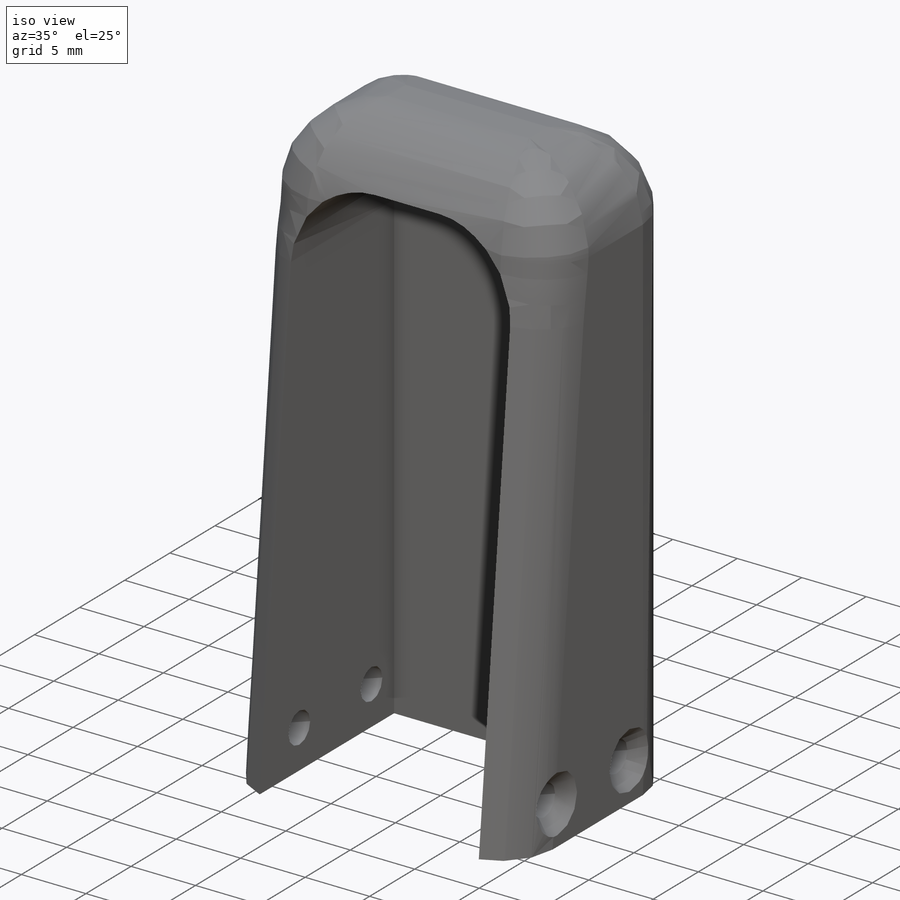
[diagram: iso view]
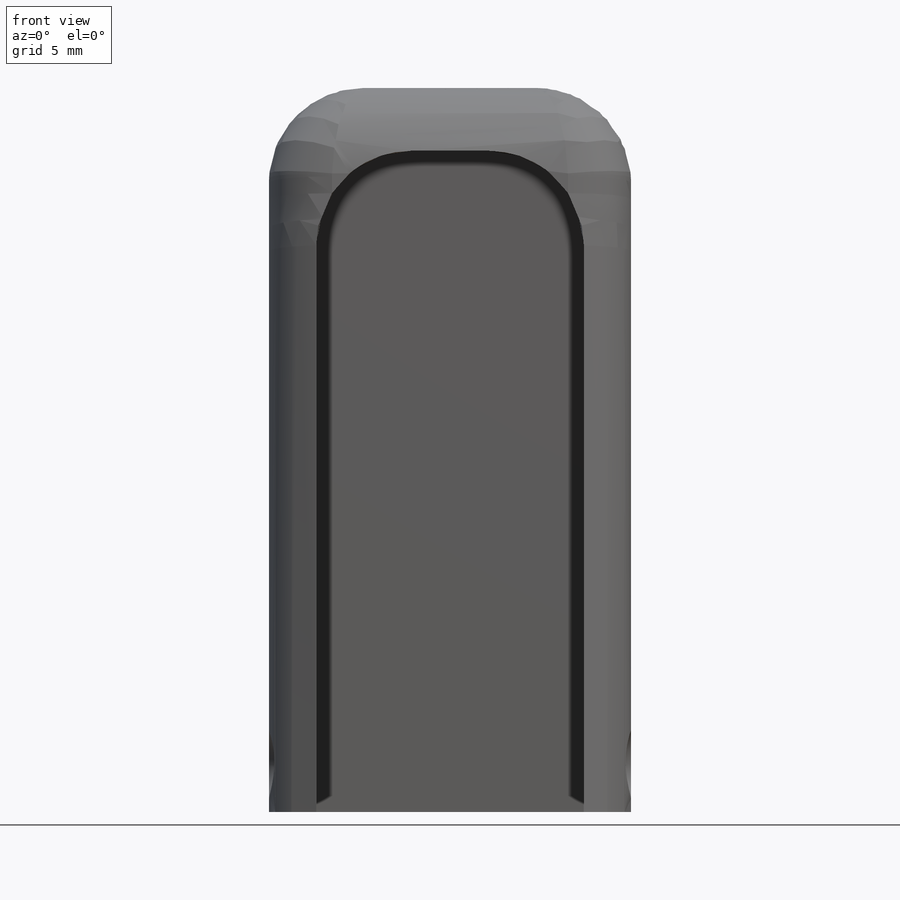
[diagram: front view]
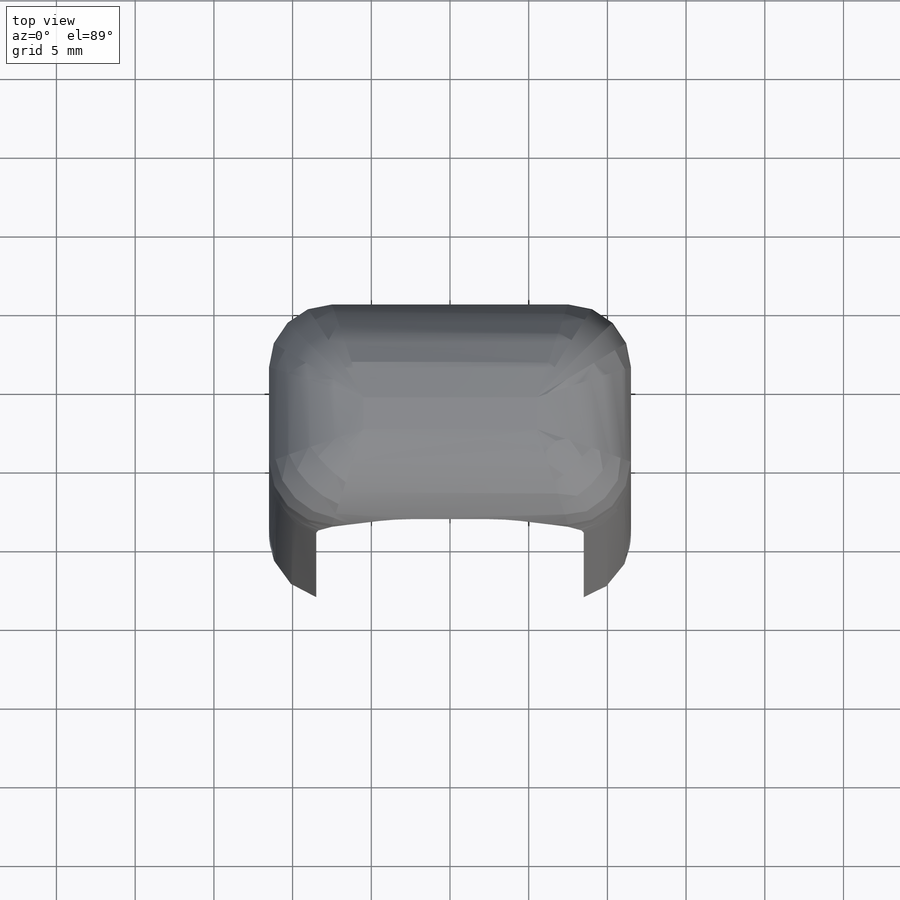
[diagram: top view]
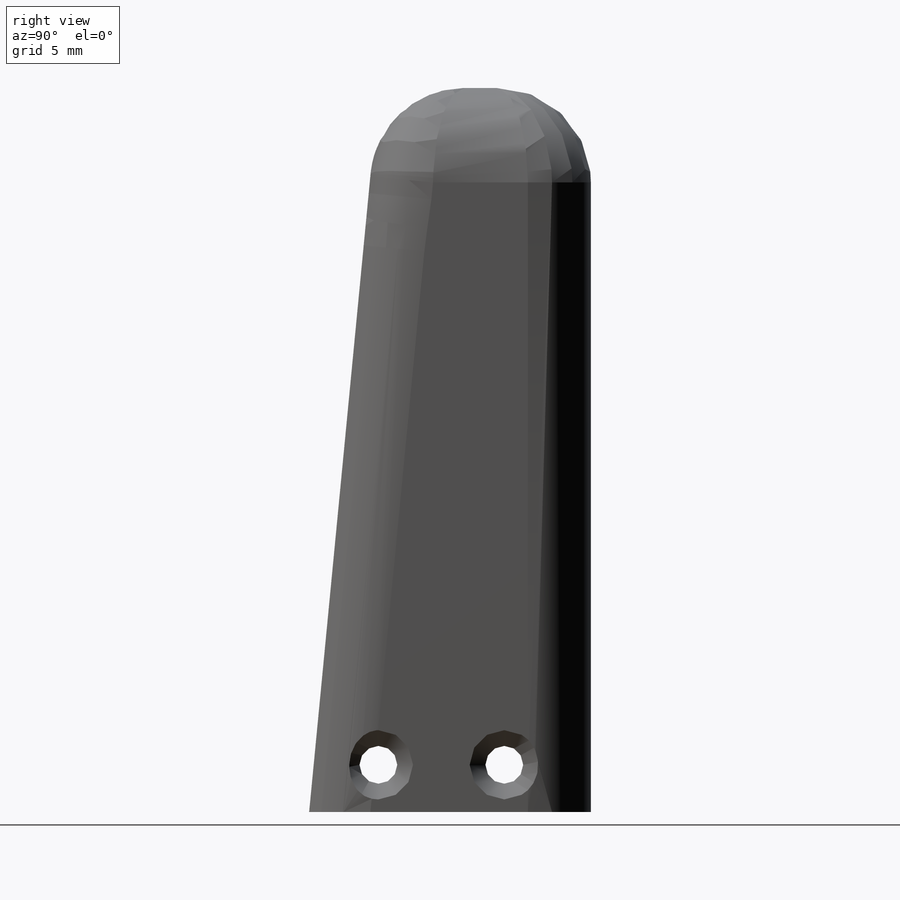
[diagram: right view]
SOLIDWORKS PART (.sldprt)
format: sldprt  version: not decoded by parser v0  size: 412,672 bytes
history: native  units: mm
features: sketch x7, cut_extrude x4, plane x3, material x1, extrude x1, mirror x1, fillet x1, hole x1 (+8 scaffold rows collapsed)
feature tree (27):
  scaffold x8  (default folders/planes/origin — collapsed)
  material  "Al 6061-T6/T651"
  plane  "Plane1"
  plane  "Plane2"
  plane  "Plane3"
  sketch  "Sketch1"  dims[c1.D1=6.0mm c1.D4=6.0mm c2.D1=5.45deg c2.D2=46.0mm c2.D3=23.0mm]
  extrude  "Base-Extrude"  Depth=17.9mm
  sketch  "Sketch4"  dims[c1.D1=6.0mm c1.D3=6.0mm c2.D1=17.0mm c2.D2=42.0mm c2.D4=17.0mm]
  cut_extrude  "Hollow back"  Depth=3mm
  sketch  "Sketch6"  dims[D2=6.0mm D3=6.0mm D1=5.5deg]
  cut_extrude  "Side Profile cut"  [1 undecoded]
  sketch  "Sketch7"  dims[D1=2.2mm D2=3.0mm D3=5.5mm D4=13.5mm]
  cut_extrude  "Thru holes"  [1 undecoded]
  sketch  "Sketch8"  dims[D1=5.0mm]
  cut_extrude  "Screw C'Sinks"  Depth=2mm
  mirror  "Screw C'Sinks - Mirror1"
  fillet  "Edge Rounds"  Radius=4mm
  hole  "CSK for M2 Flat Head Machine Screw1"  Diameter=2.4mm Depth=23.064383mm
  sketch  "3DSketch1"
  sketch  "Sketch9"  dims[hole-wizard template sketch: 55 standard entries collapsed; hole parameters kept: c17.Thru Hole Depth=~23.064383mm c17.Near C'Sink Dia.=4.4mm c17.D4=~3.666174mm c17.Near C'Sink Angle=90.0deg]
decode coverage: 11 of 15 modeling features carry decoded parameters
note: ~ marks probable driven/reference dimensions
note: 2 parameter values undecoded
note: suppression state not decoded; provenance and decode notes live in map.json
